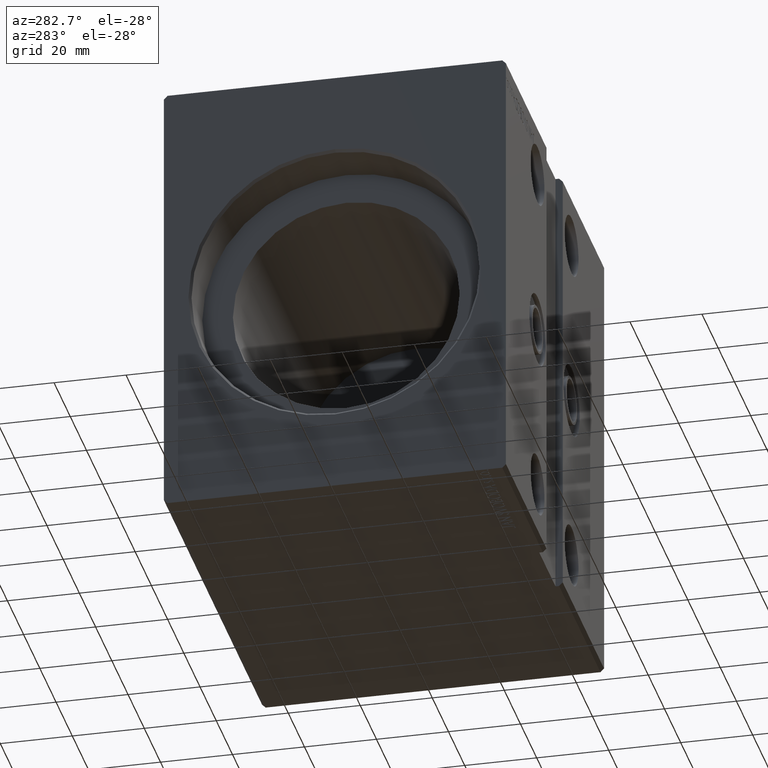
[diagram: clean part render]
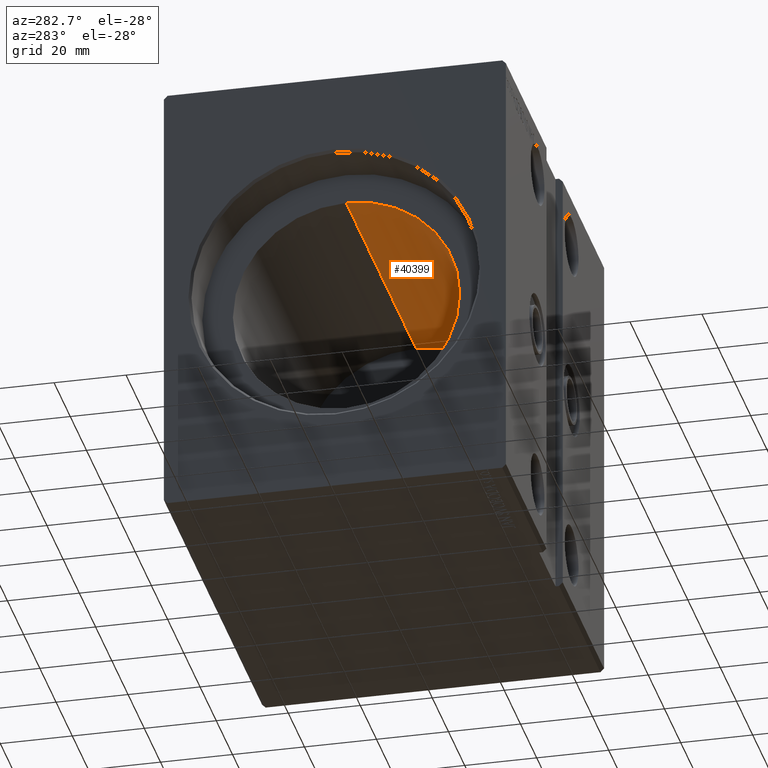
[diagram: same view with one face highlighted and labeled with its STEP entity id]
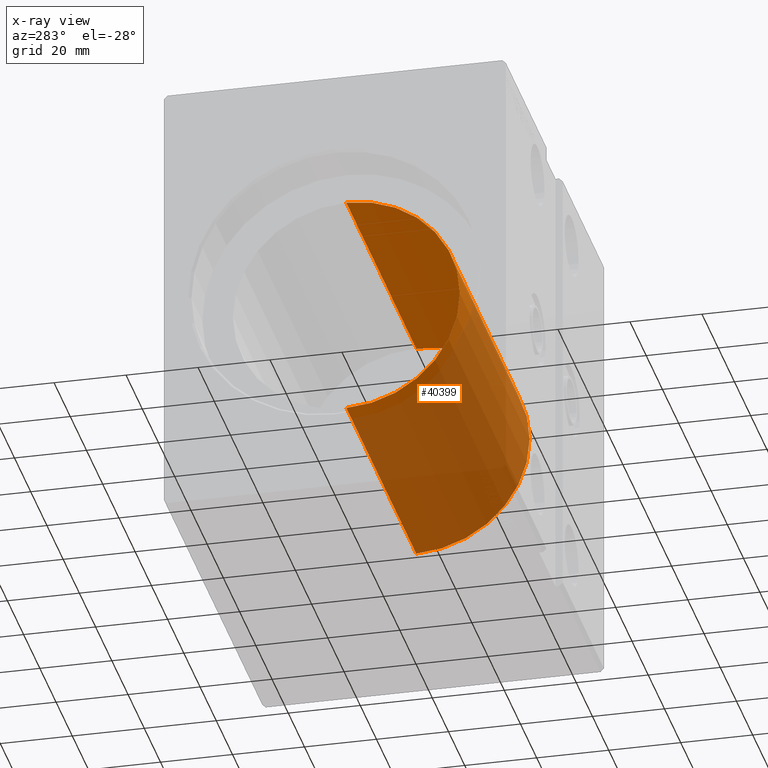
[diagram: x-ray of the same camera — body ghosted, the highlighted face saturated]
A machine part, auxiliary view. The second image highlights one B-rep face of the part: STEP entity #40399.
The next image is the same camera in x-ray: the body ghosted, the highlighted face saturated — about 68% of this face is hidden behind the body in this view.
In plain terms, the highlighted cylindrical surface (partial cylindrical patch) has radius 31.5 mm, axis along (-1, -0, -0).
Its self-contained STEP definition (entity closure, byte-faithful):
#382 = DIRECTION ( 'NONE',  ( 0.000000000000000000, 0.000000000000000000, 1.000000000000000000 ) ) ;
#444 = CARTESIAN_POINT ( 'NONE',  ( 13.99999999999999822, 3.857637417314162689E-15, -31.50000000000000000 ) ) ;
#955 = VECTOR ( 'NONE', #4658, 1000.000000000000000 ) ;
#1756 = CYLINDRICAL_SURFACE ( 'NONE', #7249, 31.50000000000000000 ) ;
#3040 = VERTEX_POINT ( 'NONE', #444 ) ;
#3406 = VERTEX_POINT ( 'NONE', #30152 ) ;
#3945 = EDGE_CURVE ( 'NONE', #3406, #4947, #7035, .T. ) ;
#4174 = VECTOR ( 'NONE', #13836, 1000.000000000000000 ) ;
#4658 = DIRECTION ( 'NONE',  ( -1.000000000000000000, -0.000000000000000000, -0.000000000000000000 ) ) ;
#4947 = VERTEX_POINT ( 'NONE', #11759 ) ;
#7035 = LINE ( 'NONE', #20010, #4174 ) ;
#7249 = AXIS2_PLACEMENT_3D ( 'NONE', #20885, #14926, #17695 ) ;
#9527 = DIRECTION ( 'NONE',  ( -1.000000000000000000, 0.000000000000000000, 0.000000000000000000 ) ) ;
#11054 = CIRCLE ( 'NONE', #11755, 31.50000000000000000 ) ;
#11669 = CARTESIAN_POINT ( 'NONE',  ( 100.2000000000000028, 3.857637417314162689E-15, -31.50000000000000000 ) ) ;
#11755 = AXIS2_PLACEMENT_3D ( 'NONE', #33248, #20074, #17098 ) ;
#11759 = CARTESIAN_POINT ( 'NONE',  ( 13.99999999999999822, 0.000000000000000000, 31.50000000000000000 ) ) ;
#12636 = ORIENTED_EDGE ( 'NONE', *, *, #3945, .F. ) ;
#13217 = EDGE_CURVE ( 'NONE', #3040, #4947, #11054, .T. ) ;
#13836 = DIRECTION ( 'NONE',  ( -1.000000000000000000, -0.000000000000000000, -0.000000000000000000 ) ) ;
#14926 = DIRECTION ( 'NONE',  ( -1.000000000000000000, -0.000000000000000000, -0.000000000000000000 ) ) ;
#16454 = ORIENTED_EDGE ( 'NONE', *, *, #36289, .F. ) ;
#16598 = EDGE_CURVE ( 'NONE', #21262, #3040, #36752, .T. ) ;
#17098 = DIRECTION ( 'NONE',  ( 0.000000000000000000, 0.000000000000000000, 1.000000000000000000 ) ) ;
#17695 = DIRECTION ( 'NONE',  ( 0.000000000000000000, 0.000000000000000000, 1.000000000000000000 ) ) ;
#18012 = ORIENTED_EDGE ( 'NONE', *, *, #16598, .T. ) ;
#20010 = CARTESIAN_POINT ( 'NONE',  ( 100.2000000000000028, 0.000000000000000000, 31.50000000000000000 ) ) ;
#20074 = DIRECTION ( 'NONE',  ( -1.000000000000000000, 0.000000000000000000, 0.000000000000000000 ) ) ;
#20376 = ORIENTED_EDGE ( 'NONE', *, *, #13217, .T. ) ;
#20885 = CARTESIAN_POINT ( 'NONE',  ( 100.2000000000000028, 0.000000000000000000, 0.000000000000000000 ) ) ;
#21262 = VERTEX_POINT ( 'NONE', #22477 ) ;
#22477 = CARTESIAN_POINT ( 'NONE',  ( 100.2000000000000028, 3.857637417314162689E-15, -31.50000000000000000 ) ) ;
#23803 = AXIS2_PLACEMENT_3D ( 'NONE', #28298, #9527, #382 ) ;
#28298 = CARTESIAN_POINT ( 'NONE',  ( 100.2000000000000028, 0.000000000000000000, 0.000000000000000000 ) ) ;
#30152 = CARTESIAN_POINT ( 'NONE',  ( 100.2000000000000028, 0.000000000000000000, 31.50000000000000000 ) ) ;
#33248 = CARTESIAN_POINT ( 'NONE',  ( 13.99999999999999822, 0.000000000000000000, 0.000000000000000000 ) ) ;
#34298 = EDGE_LOOP ( 'NONE', ( #16454, #18012, #20376, #12636 ) ) ;
#36289 = EDGE_CURVE ( 'NONE', #21262, #3406, #40765, .T. ) ;
#36752 = LINE ( 'NONE', #11669, #955 ) ;
#40399 = ADVANCED_FACE ( 'NONE', ( #41637 ), #1756, .F. ) ;
#40765 = CIRCLE ( 'NONE', #23803, 31.50000000000000000 ) ;
#41637 = FACE_OUTER_BOUND ( 'NONE', #34298, .T. ) ;